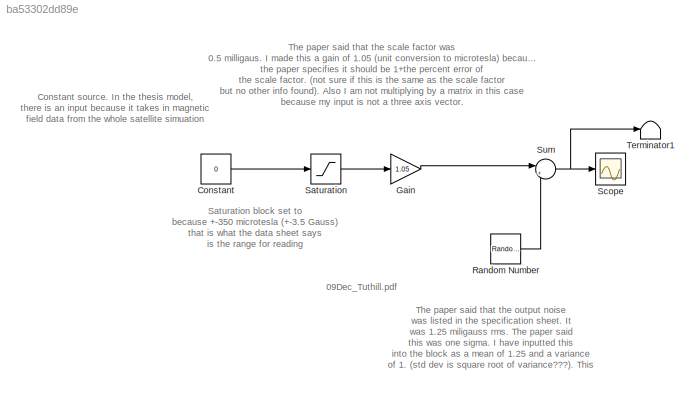
MODEL slx_ba53302dd89e
KIND model
CONFIG AbsTol = auto
CONFIG EnableMultiTasking = off
CONFIG FixedStep = auto
CONFIG MaxStep = auto
CONFIG MinStep = auto
CONFIG RelTol = 1e-3
CONFIG SampleTimeConstraint = Unconstrained
CONFIG SolverName = VariableStepAuto
CONFIG StartTime = 0.0
CONFIG StopTime = 500
WORKSPACE source: mxarray member
WORKSPACE K = 1
BLOCK [Constant] Constant
  Value = 0
BLOCK [Gain] Gain
  Gain = 1.05
  Multiplication = Matrix(K*u)
BLOCK [RandomNumber] Random Number
  Mean = 0.125
  SampleTime = 0.1
BLOCK [Saturate] Saturation
  LowerLimit = -350
  UpperLimit = 350
BLOCK [Scope] Scope
  Floating = off
  NumInputPorts = 1
  Ports = [1]
  ScopeSpecificationString = Simulink.scopes.TimeScopeBlockCfg('CurrentConfiguration', extmgr.ConfigurationSet(extmgr.Configuration('Core','General UI',true),extmgr.Configuration('Core','Source UI',true),extmgr.Configuration('Sources','WiredSimulink',true),extmgr.Configuration('Visuals','Time Domain',true,'SerializedDisplays',{struct('MinYLimReal','-4.72244','MaxYLimReal','4.90888','YLabelReal','','MinYLimMag','0.00000','MaxY...<+1352ch>
BLOCK [Sum] Sum
  Inputs = |++
  Ports = [2, 1]
BLOCK [Terminator] Terminator1
ANNOTATION (root): Constant source. In the thesis model, there is an input because it takes in magnetic field data from the whole satellite simuation
ANNOTATION (root): Saturation block set to because +-350 microtesla (+-3.5 Gauss) that is what the data sheet says is the range for reading
ANNOTATION (root): The paper said that the output noise was listed in the specification sheet. It was 1.25 miligauss rms. The paper said this was one sigma. I have inputted this into the block as a mean of 1.25 and a variance of 1. (std dev is square root of variance???). This could have been done very wrong. Okay made it 0.125 because microtesla is what is graphed.
ANNOTATION (root): 09Dec_Tuthill.pdf
ANNOTATION (root): The paper said that the scale factor was 0.5 milligaus. I made this a gain of 1.05 (unit conversion to microtesla) because the paper specifies it should be 1+the percent error of the scale factor. (not sure if this is the same as the scale factor but no other info found). Also I am not multiplying by a matrix in this case because my input is not a three axis vector.
LINE Constant:1 -> Saturation:1
LINE Gain:1 -> Sum:1
LINE Random Number:1 -> Sum:2
LINE Saturation:1 -> Gain:1
NET Sum:1 -> Scope:1, Terminator1:1
note: NET lines group one-source signal fan-out (src -> all destinations, sorted); 1:1 wires keep LINE
